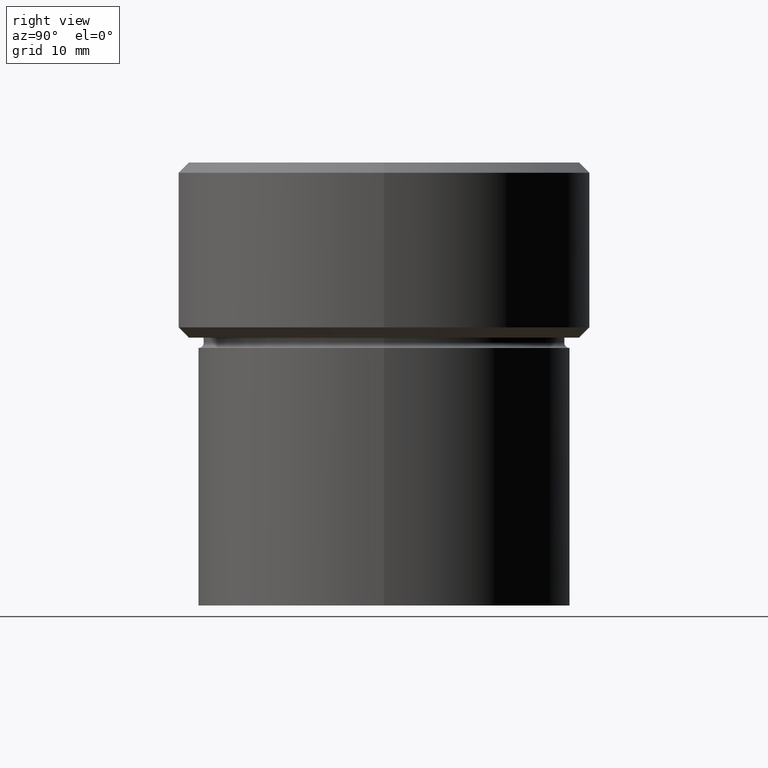
[diagram: clean part render]
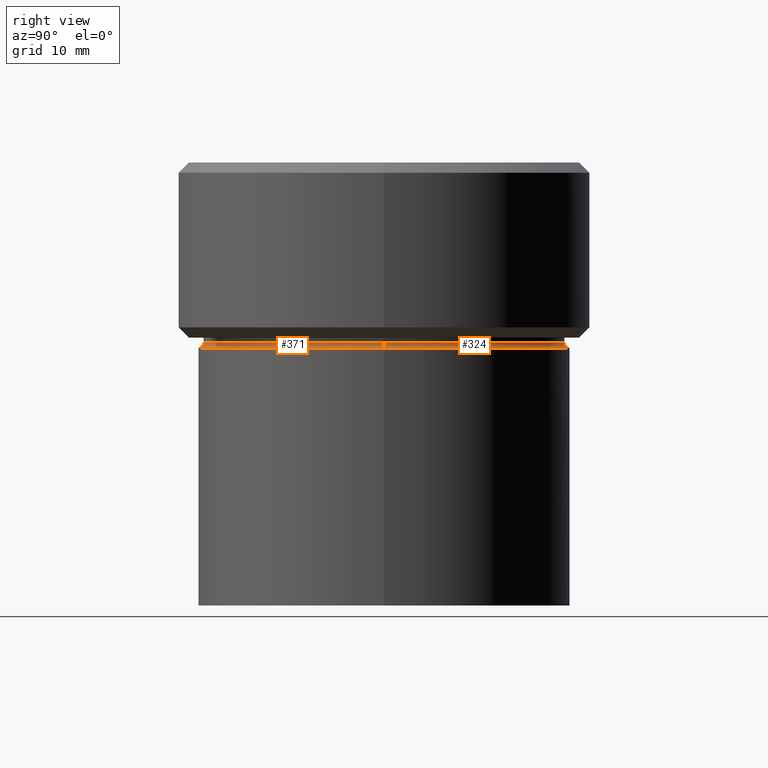
[diagram: same view with one multi-face feature highlighted, each face labeled with its STEP entity id]
A machine part, right view. The highlighted faces form ONE feature: a constant-radius fillet chain: 2 tangent blend faces with common blend radius 0.5 mm. The faces share edges in the B-rep.
Their STEP definitions:
[1] entity #371 (Torus):
#42 = DIRECTION ( 'NONE',  ( -0.000000000000000000, -0.000000000000000000, 1.000000000000000000 ) ) ;
#43 = VERTEX_POINT ( 'NONE', #180 ) ;
#75 = CARTESIAN_POINT ( 'NONE',  ( 0.000000000000000000, 0.000000000000000000, -17.49999999999999645 ) ) ;
#81 = CARTESIAN_POINT ( 'NONE',  ( -17.49999999999999645, 2.143131898507867854E-15, -17.49999999999999645 ) ) ;
#84 = ORIENTED_EDGE ( 'NONE', *, *, #194, .F. ) ;
#96 = DIRECTION ( 'NONE',  ( -0.000000000000000000, -0.000000000000000000, 1.000000000000000000 ) ) ;
#107 = CARTESIAN_POINT ( 'NONE',  ( -18.00000000000000000, 2.204364238465235428E-15, -17.49999999999999645 ) ) ;
#119 = CIRCLE ( 'NONE', #502, 0.5000000000000004441 ) ;
#125 = CIRCLE ( 'NONE', #166, 18.00000000000000000 ) ;
#137 = CARTESIAN_POINT ( 'NONE',  ( -18.00000000000000000, 2.204364238465235428E-15, -18.00000000000000000 ) ) ;
#138 = ORIENTED_EDGE ( 'NONE', *, *, #409, .F. ) ;
#162 = EDGE_CURVE ( 'NONE', #255, #360, #259, .T. ) ;
#164 = CARTESIAN_POINT ( 'NONE',  ( 17.49999999999999645, 0.000000000000000000, -17.49999999999999645 ) ) ;
#166 = AXIS2_PLACEMENT_3D ( 'NONE', #417, #96, #299 ) ;
#180 = CARTESIAN_POINT ( 'NONE',  ( 18.00000000000000000, 0.000000000000000000, -18.00000000000000000 ) ) ;
#191 = DIRECTION ( 'NONE',  ( -0.000000000000000000, -0.000000000000000000, 1.000000000000000000 ) ) ;
#194 = EDGE_CURVE ( 'NONE', #255, #383, #524, .T. ) ;
#216 = ORIENTED_EDGE ( 'NONE', *, *, #340, .T. ) ;
#237 = DIRECTION ( 'NONE',  ( 1.000000000000000000, 0.000000000000000000, 0.000000000000000000 ) ) ;
#247 = DIRECTION ( 'NONE',  ( 0.000000000000000000, 0.000000000000000000, -1.000000000000000000 ) ) ;
#255 = VERTEX_POINT ( 'NONE', #81 ) ;
#259 = CIRCLE ( 'NONE', #455, 0.5000000000000004441 ) ;
#269 = DIRECTION ( 'NONE',  ( 1.224646799147353207E-16, 1.000000000000000000, 0.000000000000000000 ) ) ;
#299 = DIRECTION ( 'NONE',  ( 1.000000000000000000, 0.000000000000000000, 0.000000000000000000 ) ) ;
#305 = TOROIDAL_SURFACE ( 'NONE', #483, 18.00000000000000000, 0.5000000000000000000 ) ;
#325 = CARTESIAN_POINT ( 'NONE',  ( 18.00000000000000000, 0.000000000000000000, -17.49999999999999645 ) ) ;
#340 = EDGE_CURVE ( 'NONE', #360, #43, #125, .T. ) ;
#358 = DIRECTION ( 'NONE',  ( -1.000000000000000000, 1.224646799147349509E-16, 0.000000000000000000 ) ) ;
#360 = VERTEX_POINT ( 'NONE', #137 ) ;
#362 = ORIENTED_EDGE ( 'NONE', *, *, #162, .T. ) ;
#371 = ADVANCED_FACE ( 'NONE', ( #453 ), #305, .F. ) ;
#372 = DIRECTION ( 'NONE',  ( 0.000000000000000000, -1.000000000000000000, 0.000000000000000000 ) ) ;
#383 = VERTEX_POINT ( 'NONE', #164 ) ;
#409 = EDGE_CURVE ( 'NONE', #383, #43, #119, .T. ) ;
#417 = CARTESIAN_POINT ( 'NONE',  ( 0.000000000000000000, 0.000000000000000000, -18.00000000000000000 ) ) ;
#448 = DIRECTION ( 'NONE',  ( 1.000000000000000000, 0.000000000000000000, 0.000000000000000000 ) ) ;
#453 = FACE_OUTER_BOUND ( 'NONE', #504, .T. ) ;
#455 = AXIS2_PLACEMENT_3D ( 'NONE', #107, #269, #358 ) ;
#457 = CARTESIAN_POINT ( 'NONE',  ( 0.000000000000000000, 0.000000000000000000, -17.49999999999999645 ) ) ;
#473 = AXIS2_PLACEMENT_3D ( 'NONE', #75, #191, #237 ) ;
#483 = AXIS2_PLACEMENT_3D ( 'NONE', #457, #42, #448 ) ;
#502 = AXIS2_PLACEMENT_3D ( 'NONE', #325, #372, #247 ) ;
#504 = EDGE_LOOP ( 'NONE', ( #84, #362, #216, #138 ) ) ;
#524 = CIRCLE ( 'NONE', #473, 17.49999999999999645 ) ;
[2] entity #324 (Torus):
#18 = DIRECTION ( 'NONE',  ( 1.000000000000000000, 0.000000000000000000, 0.000000000000000000 ) ) ;
#31 = AXIS2_PLACEMENT_3D ( 'NONE', #513, #308, #18 ) ;
#43 = VERTEX_POINT ( 'NONE', #180 ) ;
#47 = TOROIDAL_SURFACE ( 'NONE', #519, 18.00000000000000000, 0.5000000000000000000 ) ;
#72 = DIRECTION ( 'NONE',  ( -0.000000000000000000, -0.000000000000000000, 1.000000000000000000 ) ) ;
#74 = AXIS2_PLACEMENT_3D ( 'NONE', #341, #106, #304 ) ;
#81 = CARTESIAN_POINT ( 'NONE',  ( -17.49999999999999645, 2.143131898507867854E-15, -17.49999999999999645 ) ) ;
#95 = EDGE_LOOP ( 'NONE', ( #476, #449, #117, #142 ) ) ;
#106 = DIRECTION ( 'NONE',  ( -0.000000000000000000, -0.000000000000000000, 1.000000000000000000 ) ) ;
#107 = CARTESIAN_POINT ( 'NONE',  ( -18.00000000000000000, 2.204364238465235428E-15, -17.49999999999999645 ) ) ;
#117 = ORIENTED_EDGE ( 'NONE', *, *, #409, .T. ) ;
#119 = CIRCLE ( 'NONE', #502, 0.5000000000000004441 ) ;
#137 = CARTESIAN_POINT ( 'NONE',  ( -18.00000000000000000, 2.204364238465235428E-15, -18.00000000000000000 ) ) ;
#142 = ORIENTED_EDGE ( 'NONE', *, *, #482, .T. ) ;
#162 = EDGE_CURVE ( 'NONE', #255, #360, #259, .T. ) ;
#164 = CARTESIAN_POINT ( 'NONE',  ( 17.49999999999999645, 0.000000000000000000, -17.49999999999999645 ) ) ;
#180 = CARTESIAN_POINT ( 'NONE',  ( 18.00000000000000000, 0.000000000000000000, -18.00000000000000000 ) ) ;
#233 = DIRECTION ( 'NONE',  ( 1.000000000000000000, 0.000000000000000000, 0.000000000000000000 ) ) ;
#247 = DIRECTION ( 'NONE',  ( 0.000000000000000000, 0.000000000000000000, -1.000000000000000000 ) ) ;
#255 = VERTEX_POINT ( 'NONE', #81 ) ;
#259 = CIRCLE ( 'NONE', #455, 0.5000000000000004441 ) ;
#269 = DIRECTION ( 'NONE',  ( 1.224646799147353207E-16, 1.000000000000000000, 0.000000000000000000 ) ) ;
#304 = DIRECTION ( 'NONE',  ( 1.000000000000000000, 0.000000000000000000, 0.000000000000000000 ) ) ;
#308 = DIRECTION ( 'NONE',  ( -0.000000000000000000, -0.000000000000000000, 1.000000000000000000 ) ) ;
#324 = ADVANCED_FACE ( 'NONE', ( #370 ), #47, .F. ) ;
#325 = CARTESIAN_POINT ( 'NONE',  ( 18.00000000000000000, 0.000000000000000000, -17.49999999999999645 ) ) ;
#336 = CIRCLE ( 'NONE', #74, 18.00000000000000000 ) ;
#341 = CARTESIAN_POINT ( 'NONE',  ( 0.000000000000000000, 0.000000000000000000, -18.00000000000000000 ) ) ;
#358 = DIRECTION ( 'NONE',  ( -1.000000000000000000, 1.224646799147349509E-16, 0.000000000000000000 ) ) ;
#360 = VERTEX_POINT ( 'NONE', #137 ) ;
#370 = FACE_OUTER_BOUND ( 'NONE', #95, .T. ) ;
#372 = DIRECTION ( 'NONE',  ( 0.000000000000000000, -1.000000000000000000, 0.000000000000000000 ) ) ;
#383 = VERTEX_POINT ( 'NONE', #164 ) ;
#409 = EDGE_CURVE ( 'NONE', #383, #43, #119, .T. ) ;
#436 = CARTESIAN_POINT ( 'NONE',  ( 0.000000000000000000, 0.000000000000000000, -17.49999999999999645 ) ) ;
#449 = ORIENTED_EDGE ( 'NONE', *, *, #485, .F. ) ;
#455 = AXIS2_PLACEMENT_3D ( 'NONE', #107, #269, #358 ) ;
#463 = CIRCLE ( 'NONE', #31, 17.49999999999999645 ) ;
#476 = ORIENTED_EDGE ( 'NONE', *, *, #162, .F. ) ;
#482 = EDGE_CURVE ( 'NONE', #43, #360, #336, .T. ) ;
#485 = EDGE_CURVE ( 'NONE', #383, #255, #463, .T. ) ;
#502 = AXIS2_PLACEMENT_3D ( 'NONE', #325, #372, #247 ) ;
#513 = CARTESIAN_POINT ( 'NONE',  ( 0.000000000000000000, 0.000000000000000000, -17.49999999999999645 ) ) ;
#519 = AXIS2_PLACEMENT_3D ( 'NONE', #436, #72, #233 ) ;